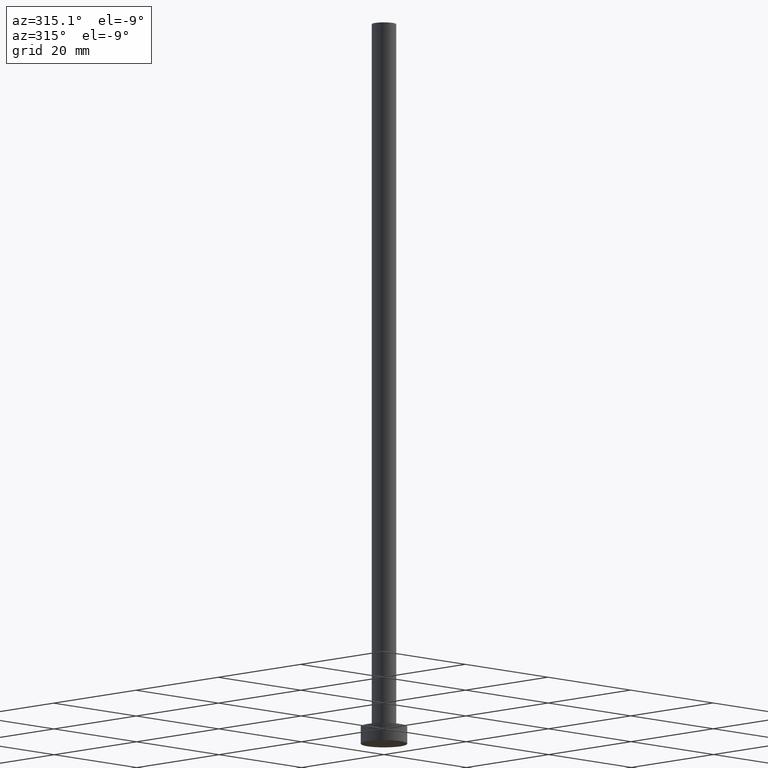
[diagram: clean part render]
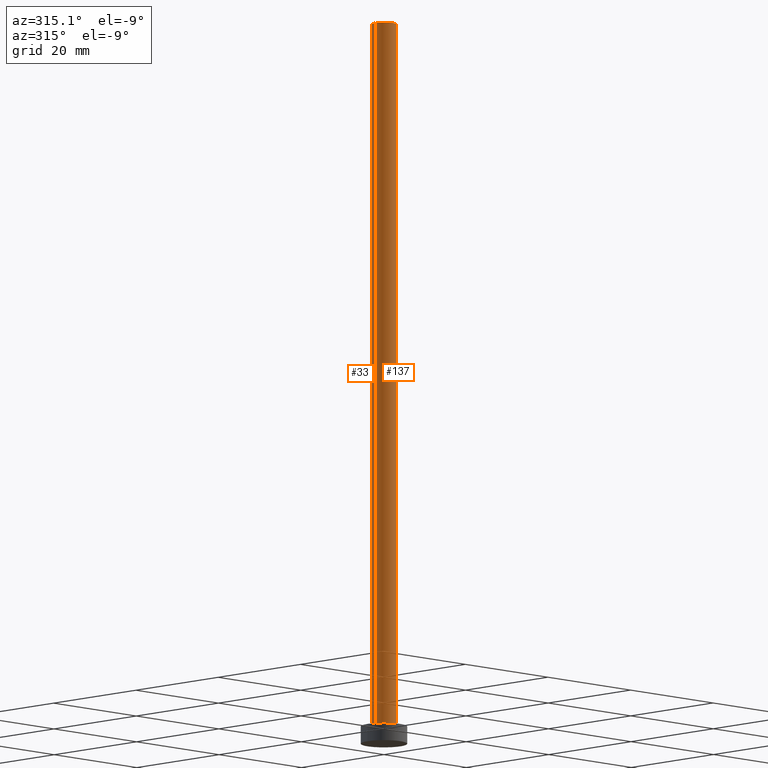
[diagram: same view with one multi-face feature highlighted, each face labeled with its STEP entity id]
A machine part, auxiliary view. The highlighted faces form ONE feature: a constant-radius fillet chain: 2 tangent blend faces with common blend radius 2.1 mm. The faces share edges in the B-rep.
Their STEP definitions:
[1] entity #137 (Cylinder):
#1 = CYLINDRICAL_SURFACE ( 'NONE', #7, 2.100000000000000089 ) ;
#4 = EDGE_LOOP ( 'NONE', ( #82, #171, #160, #223 ) ) ;
#7 = AXIS2_PLACEMENT_3D ( 'NONE', #78, #124, #121 ) ;
#13 = CIRCLE ( 'NONE', #233, 2.100000000000000089 ) ;
#19 = DIRECTION ( 'NONE',  ( -0.000000000000000000, -0.000000000000000000, -1.000000000000000000 ) ) ;
#27 = EDGE_CURVE ( 'NONE', #235, #162, #13, .T. ) ;
#29 = DIRECTION ( 'NONE',  ( 0.000000000000000000, 0.000000000000000000, 1.000000000000000000 ) ) ;
#31 = CARTESIAN_POINT ( 'NONE',  ( -2.100000000000000089, 0.000000000000000000, 125.0000000000000000 ) ) ;
#34 = DIRECTION ( 'NONE',  ( -0.000000000000000000, -0.000000000000000000, -1.000000000000000000 ) ) ;
#52 = LINE ( 'NONE', #197, #75 ) ;
#55 = CARTESIAN_POINT ( 'NONE',  ( -2.100000000000000089, 0.000000000000000000, 125.0000000000000000 ) ) ;
#58 = VERTEX_POINT ( 'NONE', #55 ) ;
#59 = EDGE_CURVE ( 'NONE', #58, #126, #86, .T. ) ;
#68 = AXIS2_PLACEMENT_3D ( 'NONE', #158, #139, #192 ) ;
#72 = EDGE_CURVE ( 'NONE', #58, #235, #100, .T. ) ;
#74 = DIRECTION ( 'NONE',  ( 1.000000000000000000, 0.000000000000000000, 0.000000000000000000 ) ) ;
#75 = VECTOR ( 'NONE', #34, 1000.000000000000000 ) ;
#78 = CARTESIAN_POINT ( 'NONE',  ( 0.000000000000000000, 0.000000000000000000, 125.0000000000000000 ) ) ;
#82 = ORIENTED_EDGE ( 'NONE', *, *, #146, .F. ) ;
#86 = CIRCLE ( 'NONE', #68, 2.100000000000000089 ) ;
#100 = LINE ( 'NONE', #31, #103 ) ;
#103 = VECTOR ( 'NONE', #19, 1000.000000000000000 ) ;
#121 = DIRECTION ( 'NONE',  ( -1.000000000000000000, 0.000000000000000000, 0.000000000000000000 ) ) ;
#124 = DIRECTION ( 'NONE',  ( -0.000000000000000000, -0.000000000000000000, -1.000000000000000000 ) ) ;
#126 = VERTEX_POINT ( 'NONE', #213 ) ;
#137 = ADVANCED_FACE ( 'NONE', ( #255 ), #1, .T. ) ;
#139 = DIRECTION ( 'NONE',  ( 0.000000000000000000, 0.000000000000000000, 1.000000000000000000 ) ) ;
#143 = CARTESIAN_POINT ( 'NONE',  ( 0.000000000000000000, 0.000000000000000000, 3.000000000000000000 ) ) ;
#146 = EDGE_CURVE ( 'NONE', #126, #162, #52, .T. ) ;
#158 = CARTESIAN_POINT ( 'NONE',  ( 0.000000000000000000, 0.000000000000000000, 125.0000000000000000 ) ) ;
#160 = ORIENTED_EDGE ( 'NONE', *, *, #72, .T. ) ;
#162 = VERTEX_POINT ( 'NONE', #215 ) ;
#171 = ORIENTED_EDGE ( 'NONE', *, *, #59, .F. ) ;
#192 = DIRECTION ( 'NONE',  ( 1.000000000000000000, 0.000000000000000000, 0.000000000000000000 ) ) ;
#197 = CARTESIAN_POINT ( 'NONE',  ( 2.100000000000000089, 2.571758278209441464E-16, 125.0000000000000000 ) ) ;
#200 = CARTESIAN_POINT ( 'NONE',  ( -2.100000000000000089, 0.000000000000000000, 3.000000000000000000 ) ) ;
#213 = CARTESIAN_POINT ( 'NONE',  ( 2.100000000000000089, 2.571758278209441464E-16, 125.0000000000000000 ) ) ;
#215 = CARTESIAN_POINT ( 'NONE',  ( 2.100000000000000089, 2.571758278209441464E-16, 3.000000000000000000 ) ) ;
#223 = ORIENTED_EDGE ( 'NONE', *, *, #27, .T. ) ;
#233 = AXIS2_PLACEMENT_3D ( 'NONE', #143, #29, #74 ) ;
#235 = VERTEX_POINT ( 'NONE', #200 ) ;
#255 = FACE_OUTER_BOUND ( 'NONE', #4, .T. ) ;
[2] entity #33 (Cylinder):
#19 = DIRECTION ( 'NONE',  ( -0.000000000000000000, -0.000000000000000000, -1.000000000000000000 ) ) ;
#31 = CARTESIAN_POINT ( 'NONE',  ( -2.100000000000000089, 0.000000000000000000, 125.0000000000000000 ) ) ;
#33 = ADVANCED_FACE ( 'NONE', ( #51 ), #118, .T. ) ;
#34 = DIRECTION ( 'NONE',  ( -0.000000000000000000, -0.000000000000000000, -1.000000000000000000 ) ) ;
#38 = AXIS2_PLACEMENT_3D ( 'NONE', #195, #248, #73 ) ;
#49 = ORIENTED_EDGE ( 'NONE', *, *, #77, .T. ) ;
#50 = CARTESIAN_POINT ( 'NONE',  ( 0.000000000000000000, 0.000000000000000000, 125.0000000000000000 ) ) ;
#51 = FACE_OUTER_BOUND ( 'NONE', #145, .T. ) ;
#52 = LINE ( 'NONE', #197, #75 ) ;
#55 = CARTESIAN_POINT ( 'NONE',  ( -2.100000000000000089, 0.000000000000000000, 125.0000000000000000 ) ) ;
#58 = VERTEX_POINT ( 'NONE', #55 ) ;
#72 = EDGE_CURVE ( 'NONE', #58, #235, #100, .T. ) ;
#73 = DIRECTION ( 'NONE',  ( 1.000000000000000000, 0.000000000000000000, 0.000000000000000000 ) ) ;
#75 = VECTOR ( 'NONE', #34, 1000.000000000000000 ) ;
#77 = EDGE_CURVE ( 'NONE', #162, #235, #224, .T. ) ;
#98 = AXIS2_PLACEMENT_3D ( 'NONE', #101, #234, #123 ) ;
#99 = DIRECTION ( 'NONE',  ( 0.000000000000000000, 0.000000000000000000, 1.000000000000000000 ) ) ;
#100 = LINE ( 'NONE', #31, #103 ) ;
#101 = CARTESIAN_POINT ( 'NONE',  ( 0.000000000000000000, 0.000000000000000000, 125.0000000000000000 ) ) ;
#102 = EDGE_CURVE ( 'NONE', #126, #58, #207, .T. ) ;
#103 = VECTOR ( 'NONE', #19, 1000.000000000000000 ) ;
#115 = ORIENTED_EDGE ( 'NONE', *, *, #146, .T. ) ;
#118 = CYLINDRICAL_SURFACE ( 'NONE', #98, 2.100000000000000089 ) ;
#123 = DIRECTION ( 'NONE',  ( -1.000000000000000000, 0.000000000000000000, 0.000000000000000000 ) ) ;
#126 = VERTEX_POINT ( 'NONE', #213 ) ;
#140 = DIRECTION ( 'NONE',  ( 1.000000000000000000, 0.000000000000000000, 0.000000000000000000 ) ) ;
#145 = EDGE_LOOP ( 'NONE', ( #187, #115, #49, #242 ) ) ;
#146 = EDGE_CURVE ( 'NONE', #126, #162, #52, .T. ) ;
#157 = AXIS2_PLACEMENT_3D ( 'NONE', #50, #99, #140 ) ;
#162 = VERTEX_POINT ( 'NONE', #215 ) ;
#187 = ORIENTED_EDGE ( 'NONE', *, *, #102, .F. ) ;
#195 = CARTESIAN_POINT ( 'NONE',  ( 0.000000000000000000, 0.000000000000000000, 3.000000000000000000 ) ) ;
#197 = CARTESIAN_POINT ( 'NONE',  ( 2.100000000000000089, 2.571758278209441464E-16, 125.0000000000000000 ) ) ;
#200 = CARTESIAN_POINT ( 'NONE',  ( -2.100000000000000089, 0.000000000000000000, 3.000000000000000000 ) ) ;
#207 = CIRCLE ( 'NONE', #157, 2.100000000000000089 ) ;
#213 = CARTESIAN_POINT ( 'NONE',  ( 2.100000000000000089, 2.571758278209441464E-16, 125.0000000000000000 ) ) ;
#215 = CARTESIAN_POINT ( 'NONE',  ( 2.100000000000000089, 2.571758278209441464E-16, 3.000000000000000000 ) ) ;
#224 = CIRCLE ( 'NONE', #38, 2.100000000000000089 ) ;
#234 = DIRECTION ( 'NONE',  ( -0.000000000000000000, -0.000000000000000000, -1.000000000000000000 ) ) ;
#235 = VERTEX_POINT ( 'NONE', #200 ) ;
#242 = ORIENTED_EDGE ( 'NONE', *, *, #72, .F. ) ;
#248 = DIRECTION ( 'NONE',  ( 0.000000000000000000, 0.000000000000000000, 1.000000000000000000 ) ) ;